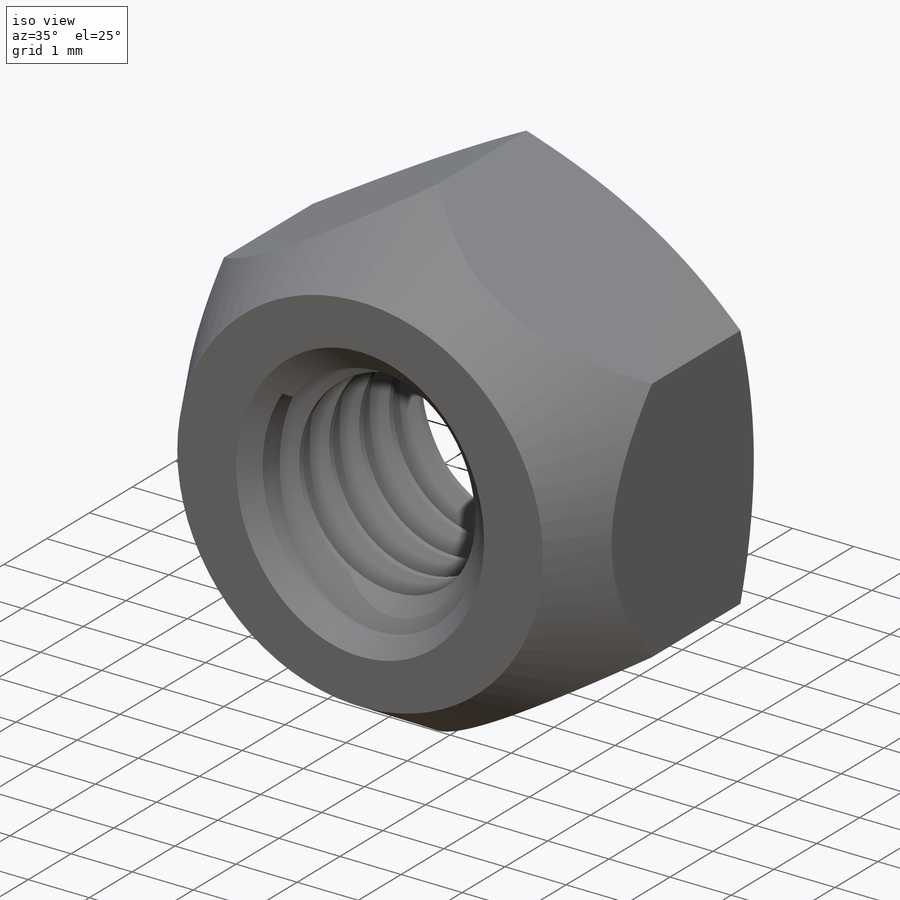
[diagram: iso view]
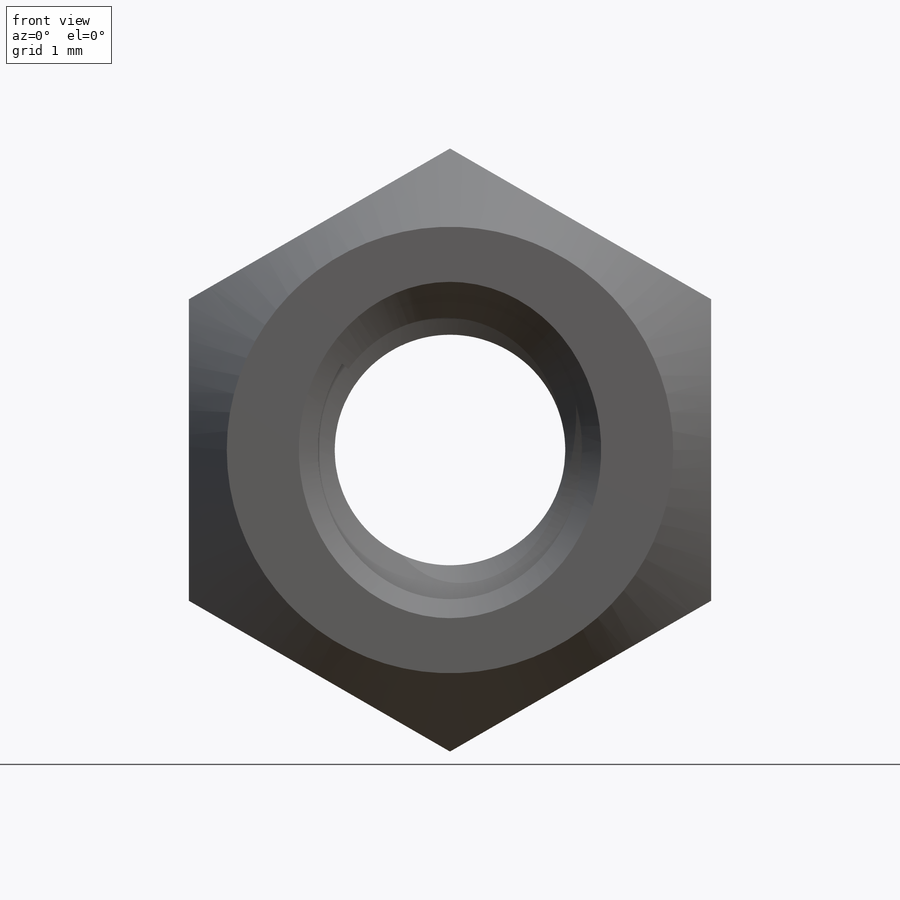
[diagram: front view]
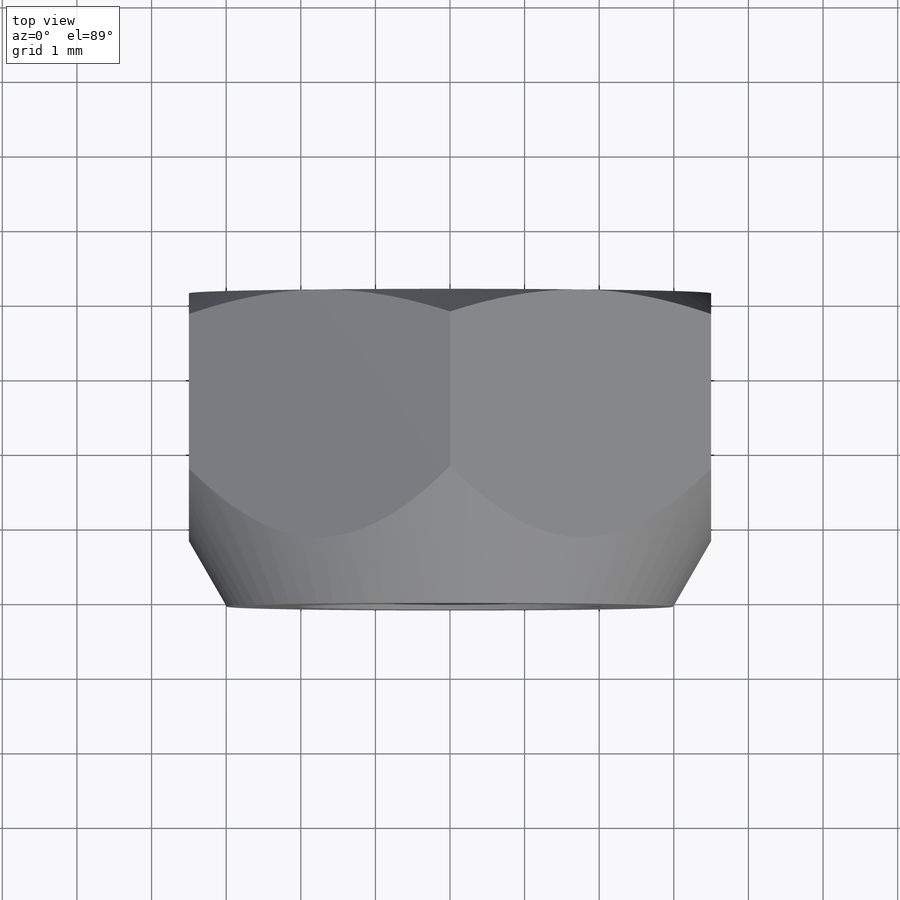
[diagram: top view]
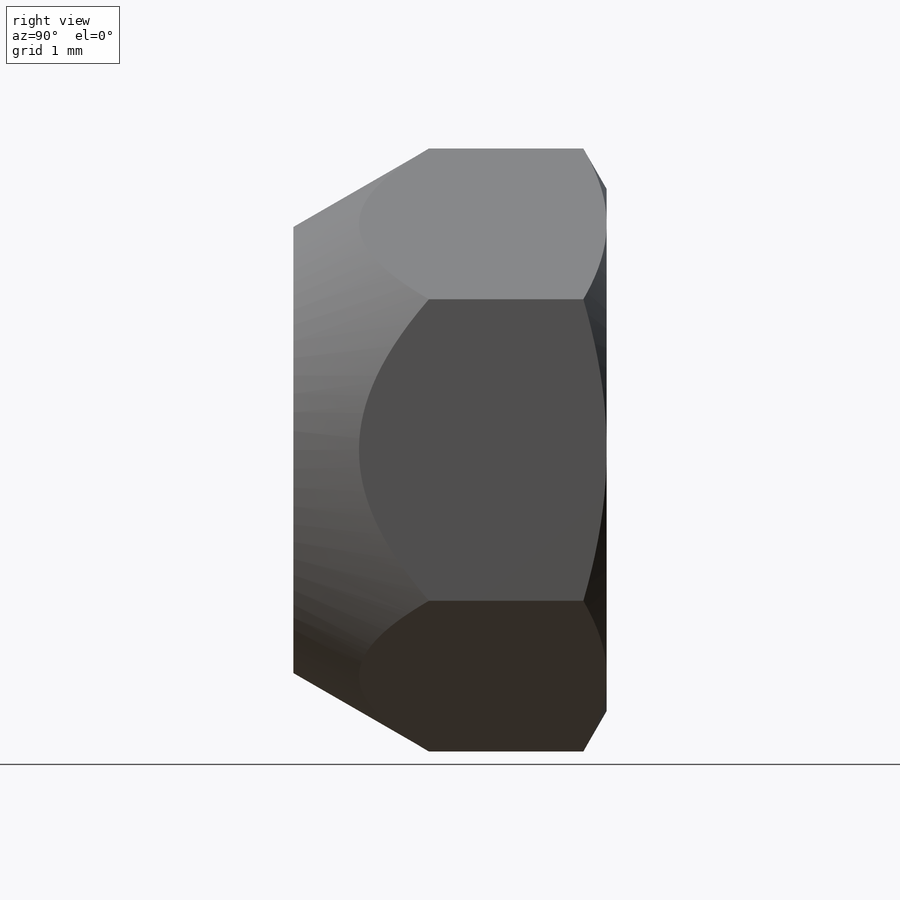
[diagram: right view]
SOLIDWORKS PART (.sldprt)
format: sldprt  version: not decoded by parser v0  size: 793,088 bytes
history: native  units: mm
features: sketch x12, cut_extrude x7, extrude x2, material x1, helix x1, sweep x1 (+11 scaffold rows collapsed)
feature tree (35):
  scaffold x11  (default folders/planes/origin — collapsed)
  material  "Material <not specified>"
  sketch  "Sketch1"  dims[Hex=7.0mm]
  extrude  "Extrude1"  Depth=4.2mm height=4.2mm
  sketch  "Sketch2"  dims[D1=0.508mm]
  cut_extrude  "Cut-Extrude1"  [1 undecoded]
  sketch  "Sketch3"  dims[D1=0.0mm]
  cut_extrude  "Cut-Extrude2"  [1 undecoded]
  sketch  "Sketch4"  dims[Thread OD=4.0mm D1=~0.227332mm D2=0.508mm]
  sketch  "Sketch5"
  sketch  "Sketch7"
  helix  "Helix/Spiral1"  Pitch=4.3mm pitch=0.7mm
  cut_extrude  "Cut-Extrude10"  [1 undecoded]
  sketch  "Sketch9"  dims[c1.D1=0.35mm c1.D2=0.0875mm c1.D3=~0.480493mm c2.D3=60.0deg c2.D4=~0.454663mm]
  sweep  "Sweep1"
  sketch  "Sketch10"  dims[D1=0.0mm]
  cut_extrude  "Cut-Extrude4"  [1 undecoded]
  sketch  "Sketch11"  dims[D1=0.0mm]
  cut_extrude  "Cut-Extrude5"  [1 undecoded]
  sketch  "Sketch16"
  extrude  "Extrude2"  [1 undecoded]
  sketch  "Sketch13"  dims[D1=0.254mm]
  cut_extrude  "Cut-Extrude8"  Depth=1.225mm
  sketch  "Sketch14"  dims[D1=0.0mm]
  cut_extrude  "Cut-Extrude9"  Depth=1.225mm
decode coverage: 13 of 23 modeling features carry decoded parameters
note: ~ marks probable driven/reference dimensions
note: 6 parameter values undecoded
summary: no parameter record found for 6 features
note: suppression state not decoded; provenance and decode notes live in map.json
